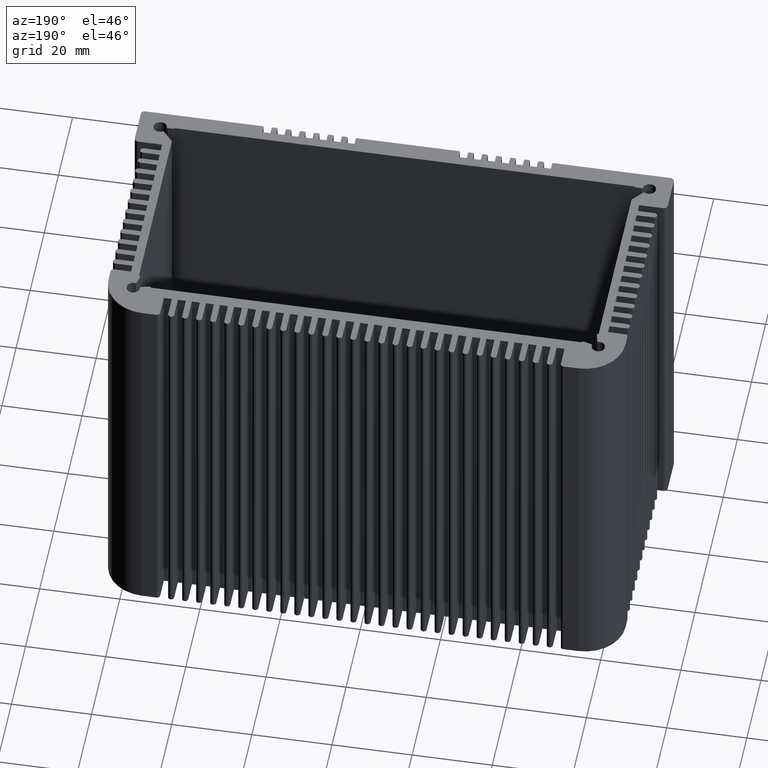
[diagram: clean part render]
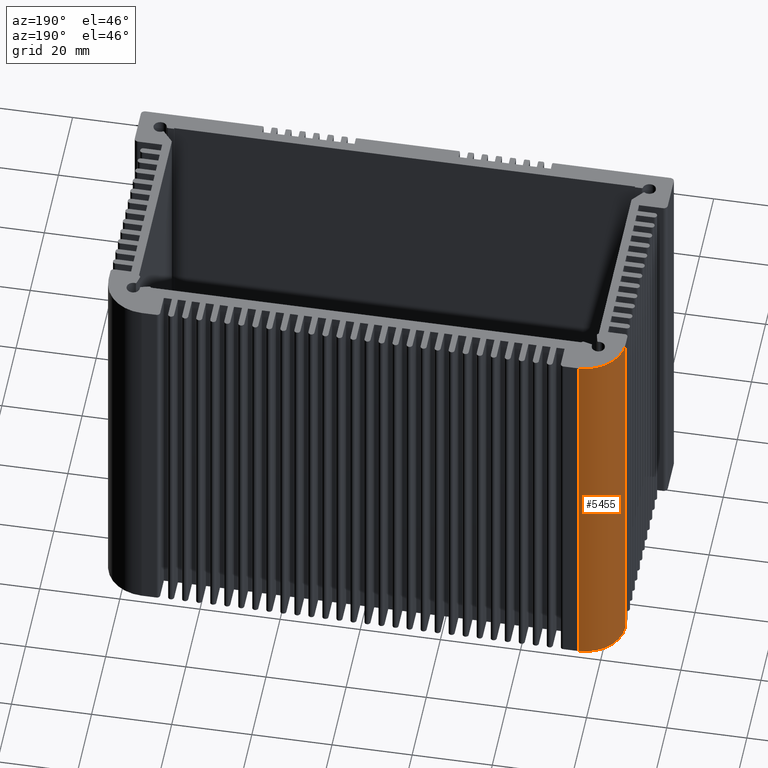
[diagram: same view with one face highlighted and labeled with its STEP entity id]
A machine part, auxiliary view. The second image highlights one B-rep face of the part: STEP entity #5455.
In plain terms, the highlighted cylindrical surface (partial cylindrical patch) has radius 10 mm, axis along (-0, -0, -1).
Its self-contained STEP definition (entity closure, byte-faithful):
#409 = DIRECTION ( 'NONE',  ( -1.000000000000000000, 0.0000000000000000000, 0.0000000000000000000 ) ) ;
#517 = CYLINDRICAL_SURFACE ( 'NONE', #11149, 9.999999999999772626 ) ;
#547 = DIRECTION ( 'NONE',  ( -0.0000000000000000000, -0.0000000000000000000, -1.000000000000000000 ) ) ;
#618 = ORIENTED_EDGE ( 'NONE', *, *, #6222, .F. ) ;
#1001 = ORIENTED_EDGE ( 'NONE', *, *, #4914, .T. ) ;
#1155 = VERTEX_POINT ( 'NONE', #6744 ) ;
#1533 = FACE_OUTER_BOUND ( 'NONE', #2098, .T. ) ;
#1569 = VERTEX_POINT ( 'NONE', #1986 ) ;
#1986 = CARTESIAN_POINT ( 'NONE',  ( -44.52947535880235108, -9.491403714449257123, 50.00000000000000000 ) ) ;
#2098 = EDGE_LOOP ( 'NONE', ( #7067, #618, #8046, #1001 ) ) ;
#2300 = CARTESIAN_POINT ( 'NONE',  ( -34.52947535880257135, 0.5085962855507497604, -50.00000000000000000 ) ) ;
#3634 = VERTEX_POINT ( 'NONE', #2300 ) ;
#3704 = AXIS2_PLACEMENT_3D ( 'NONE', #5192, #12598, #6230 ) ;
#4097 = CARTESIAN_POINT ( 'NONE',  ( -34.52947535880257135, 0.5085962855507497604, 50.00000000000000000 ) ) ;
#4914 = EDGE_CURVE ( 'NONE', #5108, #3634, #10666, .T. ) ;
#5108 = VERTEX_POINT ( 'NONE', #11853 ) ;
#5126 = AXIS2_PLACEMENT_3D ( 'NONE', #11615, #5271, #12680 ) ;
#5192 = CARTESIAN_POINT ( 'NONE',  ( -34.52947535880257135, -9.491403714449022644, -50.00000000000000000 ) ) ;
#5271 = DIRECTION ( 'NONE',  ( 0.0000000000000000000, 0.0000000000000000000, 1.000000000000000000 ) ) ;
#5455 = ADVANCED_FACE ( 'NONE', ( #1533 ), #517, .T. ) ;
#6222 = EDGE_CURVE ( 'NONE', #1569, #1155, #12439, .T. ) ;
#6230 = DIRECTION ( 'NONE',  ( 1.000000000000000000, 0.0000000000000000000, 0.0000000000000000000 ) ) ;
#6288 = CIRCLE ( 'NONE', #3704, 9.999999999999772626 ) ;
#6470 = EDGE_CURVE ( 'NONE', #3634, #1155, #6288, .T. ) ;
#6531 = EDGE_CURVE ( 'NONE', #5108, #1569, #11600, .T. ) ;
#6744 = CARTESIAN_POINT ( 'NONE',  ( -44.52947535880235108, -9.491403714449257123, -50.00000000000000000 ) ) ;
#6870 = CARTESIAN_POINT ( 'NONE',  ( -44.52947535880235108, -9.491403714449257123, 50.00000000000000000 ) ) ;
#7067 = ORIENTED_EDGE ( 'NONE', *, *, #6470, .T. ) ;
#8046 = ORIENTED_EDGE ( 'NONE', *, *, #6531, .F. ) ;
#9630 = VECTOR ( 'NONE', #547, 1000.000000000000000 ) ;
#9990 = CARTESIAN_POINT ( 'NONE',  ( -34.52947535880257135, -9.491403714449022644, 50.00000000000000000 ) ) ;
#10666 = LINE ( 'NONE', #4097, #13463 ) ;
#11149 = AXIS2_PLACEMENT_3D ( 'NONE', #9990, #12109, #409 ) ;
#11600 = CIRCLE ( 'NONE', #5126, 9.999999999999772626 ) ;
#11615 = CARTESIAN_POINT ( 'NONE',  ( -34.52947535880257135, -9.491403714449022644, 50.00000000000000000 ) ) ;
#11853 = CARTESIAN_POINT ( 'NONE',  ( -34.52947535880257135, 0.5085962855507497604, 50.00000000000000000 ) ) ;
#12109 = DIRECTION ( 'NONE',  ( -0.0000000000000000000, -0.0000000000000000000, -1.000000000000000000 ) ) ;
#12439 = LINE ( 'NONE', #6870, #9630 ) ;
#12552 = DIRECTION ( 'NONE',  ( -0.0000000000000000000, -0.0000000000000000000, -1.000000000000000000 ) ) ;
#12598 = DIRECTION ( 'NONE',  ( 0.0000000000000000000, 0.0000000000000000000, 1.000000000000000000 ) ) ;
#12680 = DIRECTION ( 'NONE',  ( 1.000000000000000000, 0.0000000000000000000, 0.0000000000000000000 ) ) ;
#13463 = VECTOR ( 'NONE', #12552, 1000.000000000000000 ) ;